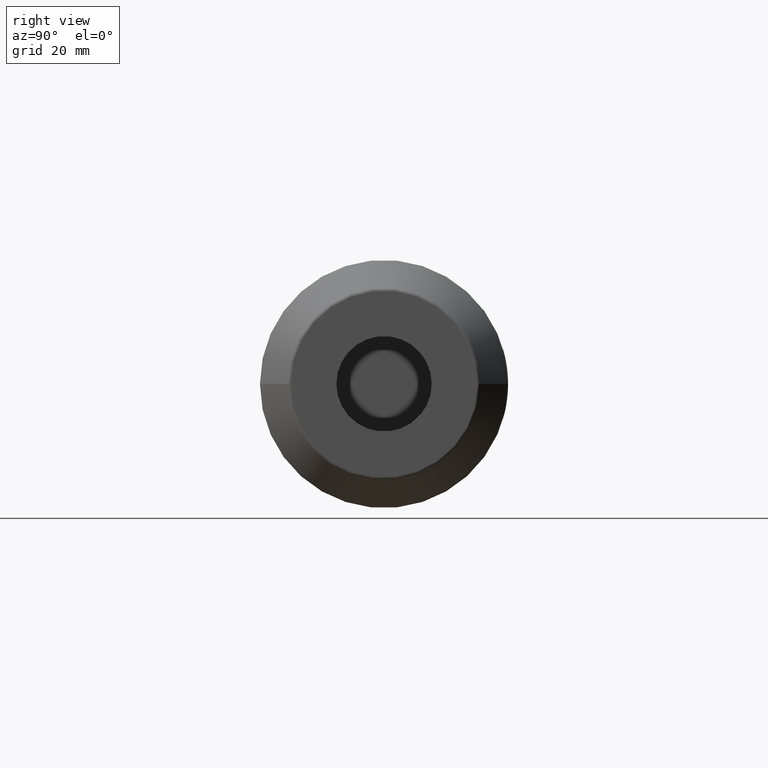
[diagram: clean part render]
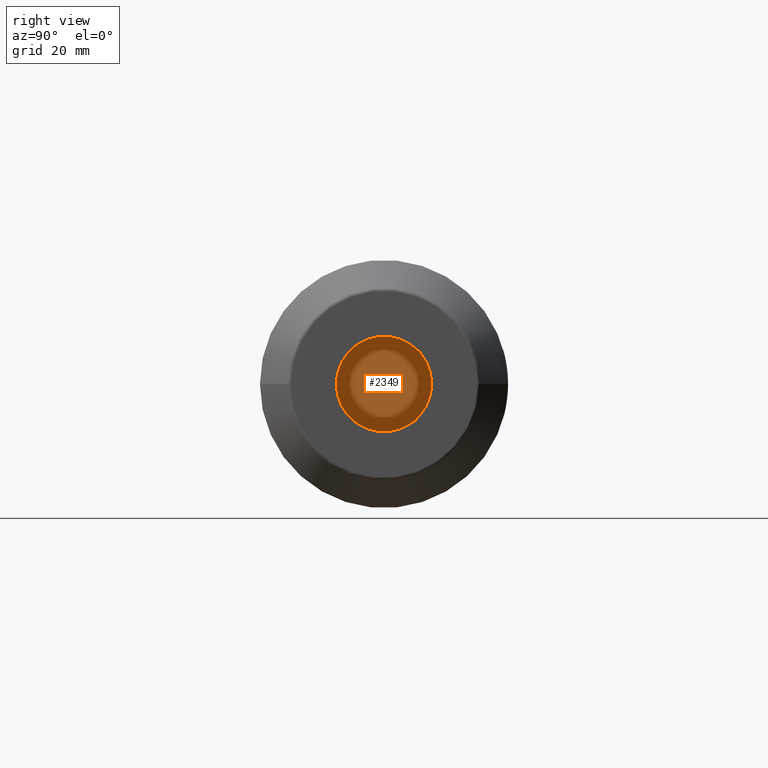
[diagram: same view with one face highlighted and labeled with its STEP entity id]
A machine part, right view. The second image highlights one B-rep face of the part: STEP entity #2349.
In plain terms, the highlighted planar face has unit normal (1, 0, 0).
Its self-contained STEP definition (entity closure, byte-faithful):
#506=CARTESIAN_POINT('',(3.89E1,0.E0,0.E0));
#507=DIRECTION('',(-1.E0,0.E0,0.E0));
#508=DIRECTION('',(0.E0,1.E0,0.E0));
#509=AXIS2_PLACEMENT_3D('',#506,#507,#508);
#511=CARTESIAN_POINT('',(3.89E1,0.E0,0.E0));
#512=DIRECTION('',(1.E0,0.E0,0.E0));
#513=DIRECTION('',(0.E0,1.E0,0.E0));
#514=AXIS2_PLACEMENT_3D('',#511,#512,#513);
#1784=CARTESIAN_POINT('',(3.89E1,1.25E1,0.E0));
#1785=CARTESIAN_POINT('',(3.89E1,-1.25E1,0.E0));
#1786=VERTEX_POINT('',#1784);
#1787=VERTEX_POINT('',#1785);
#2340=CARTESIAN_POINT('',(3.89E1,0.E0,0.E0));
#2341=DIRECTION('',(1.E0,0.E0,0.E0));
#2342=DIRECTION('',(0.E0,-1.E0,0.E0));
#2343=AXIS2_PLACEMENT_3D('',#2340,#2341,#2342);
#2344=PLANE('',#2343);
#2345=ORIENTED_EDGE('',*,*,#2315,.T.);
#2346=ORIENTED_EDGE('',*,*,#2329,.F.);
#2347=EDGE_LOOP('',(#2345,#2346));
#2348=FACE_OUTER_BOUND('',#2347,.F.);
#2349=ADVANCED_FACE('',(#2348),#2344,.T.);
#510=CIRCLE('',#509,1.25E1);
#515=CIRCLE('',#514,1.25E1);
#2315=EDGE_CURVE('',#1786,#1787,#510,.T.);
#2329=EDGE_CURVE('',#1786,#1787,#515,.T.);